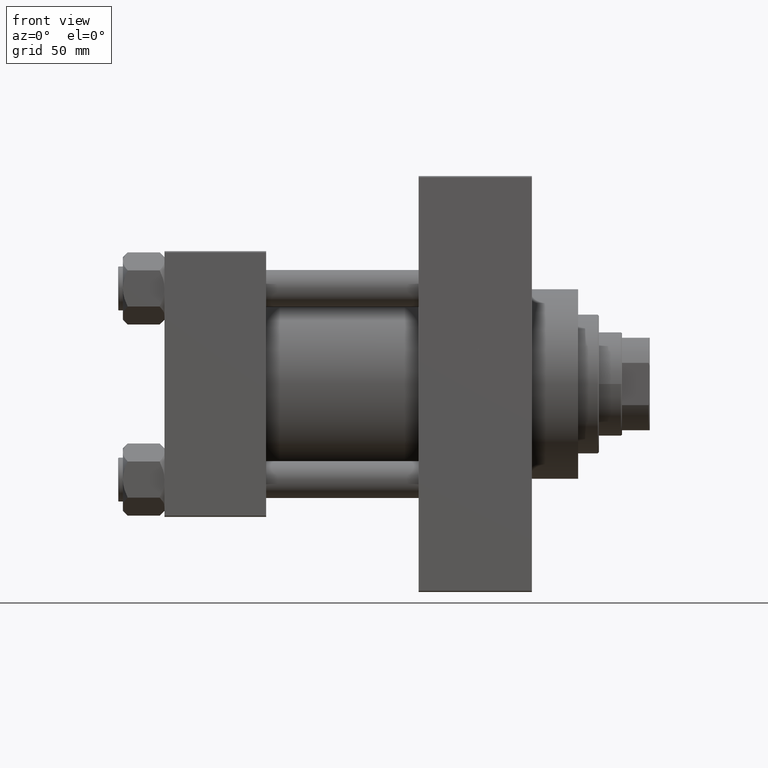
[diagram: clean part render]
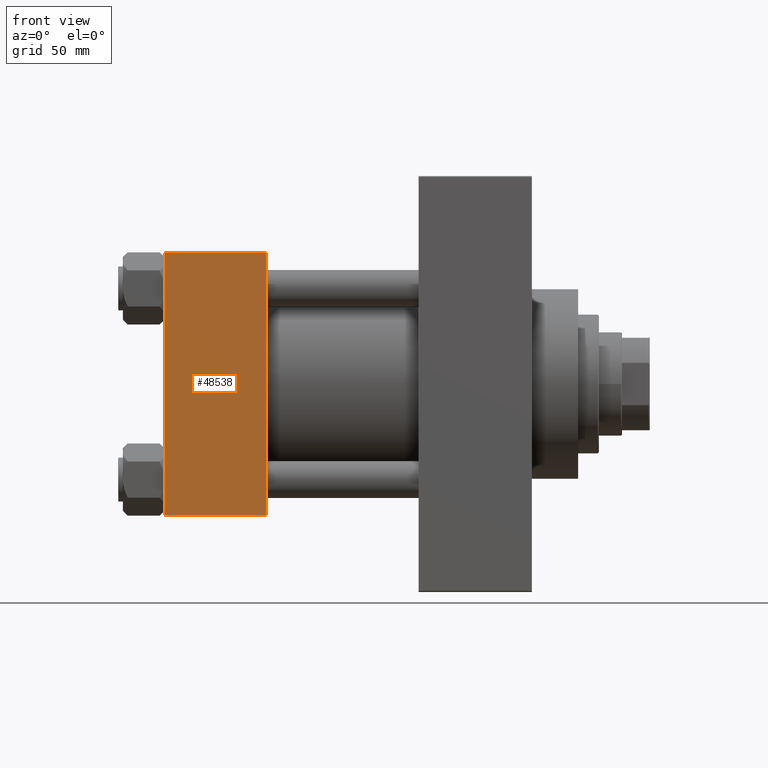
[diagram: same view with one face highlighted and labeled with its STEP entity id]
A machine part, front view. The second image highlights one B-rep face of the part: STEP entity #48538.
In plain terms, the highlighted planar face has unit normal (0, 1, 0).
Its self-contained STEP definition (entity closure, byte-faithful):
#2412 = LINE ( 'NONE', #33615, #17883 ) ;
#4551 = VERTEX_POINT ( 'NONE', #36029 ) ;
#6107 = FACE_OUTER_BOUND ( 'NONE', #37584, .T. ) ;
#7125 = EDGE_CURVE ( 'NONE', #43115, #42244, #31837, .T. ) ;
#7922 = CARTESIAN_POINT ( 'NONE',  ( 44.00000000000000000, -57.50000000000000000, 57.49999999999999289 ) ) ;
#9195 = VECTOR ( 'NONE', #29371, 1000.000000000000000 ) ;
#11665 = CARTESIAN_POINT ( 'NONE',  ( 0.000000000000000000, -57.49999999999999289, -57.00000000000003553 ) ) ;
#12921 = CARTESIAN_POINT ( 'NONE',  ( 44.00000000000000000, -57.50000000000000000, 57.49999999999999289 ) ) ;
#14272 = CARTESIAN_POINT ( 'NONE',  ( 44.00000000000000000, -57.50000000000000000, 56.99999999999997868 ) ) ;
#15489 = CARTESIAN_POINT ( 'NONE',  ( 44.00000000000000000, -57.50000000000000000, 56.99999999999997868 ) ) ;
#15542 = EDGE_CURVE ( 'NONE', #37699, #42244, #36603, .T. ) ;
#17456 = ORIENTED_EDGE ( 'NONE', *, *, #15542, .T. ) ;
#17680 = DIRECTION ( 'NONE',  ( 0.000000000000000000, -6.033820786006285224E-17, 1.000000000000000000 ) ) ;
#17692 = ORIENTED_EDGE ( 'NONE', *, *, #7125, .F. ) ;
#17883 = VECTOR ( 'NONE', #36658, 1000.000000000000000 ) ;
#19081 = VECTOR ( 'NONE', #39650, 1000.000000000000000 ) ;
#21462 = PLANE ( 'NONE',  #34079 ) ;
#29371 = DIRECTION ( 'NONE',  ( -1.000000000000000000, 0.000000000000000000, 0.000000000000000000 ) ) ;
#31837 = LINE ( 'NONE', #7922, #19081 ) ;
#32555 = ORIENTED_EDGE ( 'NONE', *, *, #47986, .T. ) ;
#32582 = CARTESIAN_POINT ( 'NONE',  ( 44.00000000000000000, -57.49999999999999289, -57.00000000000003553 ) ) ;
#33615 = CARTESIAN_POINT ( 'NONE',  ( 0.000000000000000000, -57.50000000000000000, 57.49999999999999289 ) ) ;
#34079 = AXIS2_PLACEMENT_3D ( 'NONE', #12921, #36309, #17680 ) ;
#35082 = ORIENTED_EDGE ( 'NONE', *, *, #41037, .T. ) ;
#35863 = DIRECTION ( 'NONE',  ( 1.000000000000000000, 0.000000000000000000, 0.000000000000000000 ) ) ;
#36029 = CARTESIAN_POINT ( 'NONE',  ( 0.000000000000000000, -57.50000000000000000, 56.99999999999997868 ) ) ;
#36309 = DIRECTION ( 'NONE',  ( -0.000000000000000000, 1.000000000000000000, 6.033820786006285224E-17 ) ) ;
#36434 = LINE ( 'NONE', #14272, #9195 ) ;
#36603 = LINE ( 'NONE', #32582, #41557 ) ;
#36658 = DIRECTION ( 'NONE',  ( 0.000000000000000000, 6.033820786006285224E-17, -1.000000000000000000 ) ) ;
#37584 = EDGE_LOOP ( 'NONE', ( #35082, #17456, #17692, #32555 ) ) ;
#37699 = VERTEX_POINT ( 'NONE', #11665 ) ;
#39404 = CARTESIAN_POINT ( 'NONE',  ( 44.00000000000000000, -57.49999999999999289, -57.00000000000003553 ) ) ;
#39650 = DIRECTION ( 'NONE',  ( 0.000000000000000000, 6.033820786006285224E-17, -1.000000000000000000 ) ) ;
#41037 = EDGE_CURVE ( 'NONE', #4551, #37699, #2412, .T. ) ;
#41557 = VECTOR ( 'NONE', #35863, 1000.000000000000000 ) ;
#42244 = VERTEX_POINT ( 'NONE', #39404 ) ;
#43115 = VERTEX_POINT ( 'NONE', #15489 ) ;
#47986 = EDGE_CURVE ( 'NONE', #43115, #4551, #36434, .T. ) ;
#48538 = ADVANCED_FACE ( 'NONE', ( #6107 ), #21462, .F. ) ;